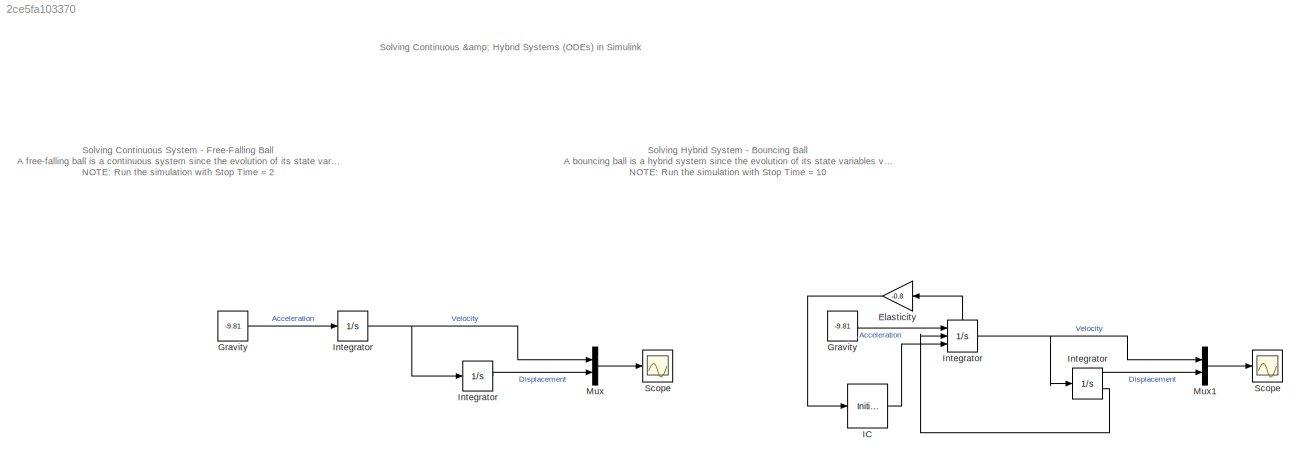
MODEL slx_2ce5fa103370
KIND model
CONFIG AbsTol = auto
CONFIG EnableMultiTasking = off
CONFIG FixedStep = auto
CONFIG MaxStep = auto
CONFIG MinStep = auto
CONFIG RelTol = 1e-3
CONFIG SampleTimeConstraint = Unconstrained
CONFIG SolverName = ode45
CONFIG StartTime = 0.0
CONFIG StopTime = 10
BLOCK [Integrator]    Integrator   
  InitialCondition = 15
  LimitOutput = on
  LowerSaturationLimit = 0
  Ports = [1, 2]
  ShowSaturationPort = on
BLOCK [Integrator]   Integrator  
  ExternalReset = falling
  InitialConditionSource = external
  Ports = [3, 1, 0, 0, 1]
  ShowStatePort = on
BLOCK [Constant]  Gravity 
  Value = -9.81
BLOCK [Integrator]  Integrator 
  Commented = on
  InitialCondition = 15
  Ports = [1, 1]
BLOCK [Scope]  Scope 
  Floating = off
  NumInputPorts = 1
  Ports = [1]
  ScopeSpecificationString = Simulink.scopes.TimeScopeBlockCfg('CurrentConfiguration', extmgr.ConfigurationSet(extmgr.Configuration('Core','General UI',true),extmgr.Configuration('Core','Source UI',true),extmgr.Configuration('Sources','WiredSimulink',true,'DataLoggingVariableName','ScopeData1'),extmgr.Configuration('Visuals','Time Domain',true,'SerializedDisplays',{struct('MinYLimReal','-21.17457','MaxYLimReal','19.0194','YLa...<+1409ch>
BLOCK [Gain] Elasticity
  Gain = -0.8
  NameLocation = top
BLOCK [Constant] Gravity
  Commented = on
  Value = -9.81
BLOCK [InitialCondition] IC
  Value = 0
BLOCK [Integrator] Integrator
  Commented = on
  Ports = [1, 1]
BLOCK [Mux] Mux
  Commented = on
  DisplayOption = bar
  Inputs = 2
  Ports = [2, 1]
BLOCK [Mux] Mux1
  DisplayOption = bar
  Inputs = 2
  Ports = [2, 1]
BLOCK [Scope] Scope
  Commented = on
  Floating = off
  NumInputPorts = 1
  Ports = [1]
  ScopeSpecificationString = Simulink.scopes.TimeScopeBlockCfg('CurrentConfiguration', extmgr.ConfigurationSet(extmgr.Configuration('Core','General UI',true),extmgr.Configuration('Core','Source UI',true),extmgr.Configuration('Sources','WiredSimulink',true),extmgr.Configuration('Visuals','Time Domain',true,'SerializedDisplays',{struct('MinYLimReal','-23.9475','MaxYLimReal','19.3275','YLabelReal','','MinYLimMag','0.00000','MaxY...<+1341ch>
ANNOTATION (root): Solving Continuous & Hybrid Systems (ODEs) in Simulink
ANNOTATION (root): Solving Continuous System - Free-Falling Ball A free-falling ball is a continuous system since the evolution of its state variables vary continuously. NOTE : Run the simulation with Stop Time = 2
ANNOTATION (root): Solving Hybrid System - Bouncing Ball A bouncing ball is a hybrid system since the evolution of its state variables vary continuously when falling, but have a discrete change (velocity is reversed) when entering in collision with the ground. NOTE : Run the simulation with Stop Time = 10
LINE    Integrator   :1 -> Mux1:2
LINE    Integrator   :2 ->   Integrator  :2
NET   Integrator  :1 ->    Integrator   :1, Mux1:1
LINE   Integrator  :state -> Elasticity:1
LINE  Gravity :1 ->   Integrator  :1
LINE  Integrator :1 -> Mux:2
LINE Elasticity:1 -> IC:1
LINE Gravity:1 -> Integrator:1
LINE IC:1 ->   Integrator  :3
NET Integrator:1 ->  Integrator :1, Mux:1
LINE Mux1:1 ->  Scope :1
LINE Mux:1 -> Scope:1
note: NET lines group one-source signal fan-out (src -> all destinations, sorted); 1:1 wires keep LINE
